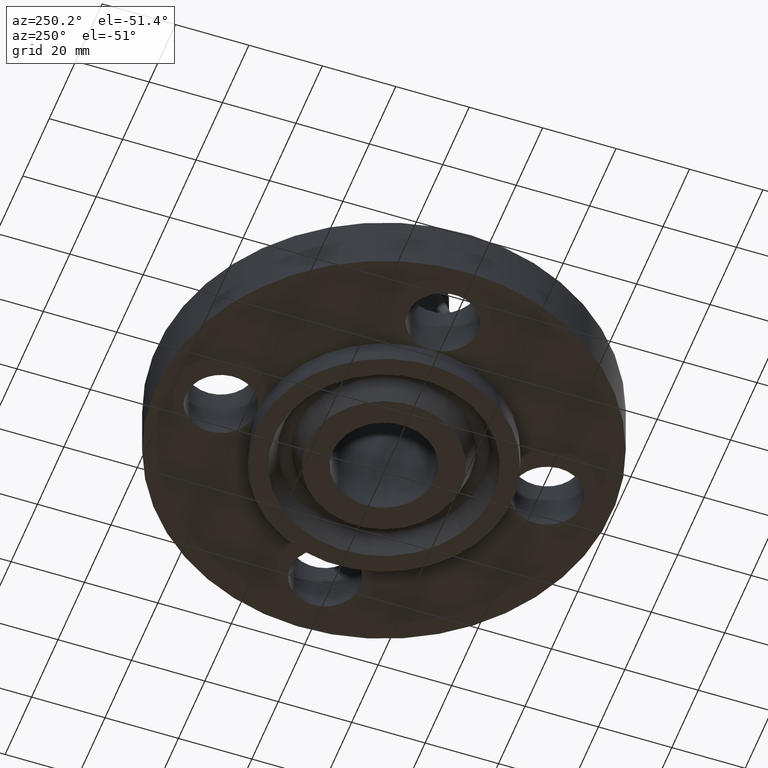
[diagram: clean part render]
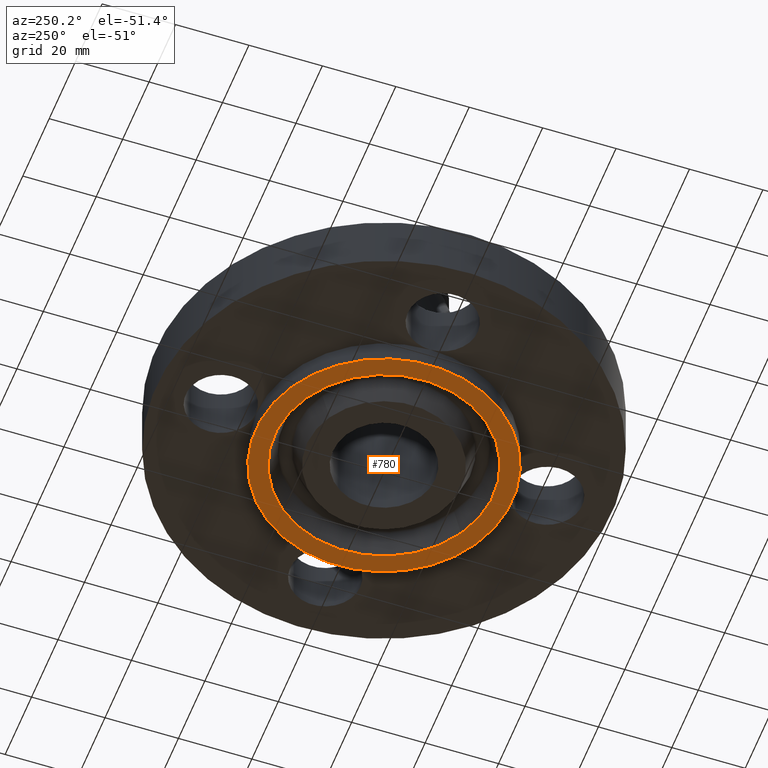
[diagram: same view with one face highlighted and labeled with its STEP entity id]
A machine part, auxiliary view. The second image highlights one B-rep face of the part: STEP entity #780.
In plain terms, the highlighted planar face has unit normal (0, 0, -1).
Its self-contained STEP definition (entity closure, byte-faithful):
#454=AXIS2_PLACEMENT_3D('Circle Axis2P3D',#452,#453,$) ;
#503=AXIS2_PLACEMENT_3D('Circle Axis2P3D',#501,#502,$) ;
#756=AXIS2_PLACEMENT_3D('Plane Axis2P3D',#753,#754,#755) ;
#764=AXIS2_PLACEMENT_3D('Circle Axis2P3D',#762,#763,$) ;
#773=AXIS2_PLACEMENT_3D('Circle Axis2P3D',#771,#772,$) ;
#452=CARTESIAN_POINT('Axis2P3D Location',(0.,0.,-0.250000000001)) ;
#456=CARTESIAN_POINT('Vertex',(-0.659210115583,-1.2066760226,-0.250000000001)) ;
#458=CARTESIAN_POINT('Vertex',(0.659210115583,1.2066760226,-0.250000000001)) ;
#501=CARTESIAN_POINT('Axis2P3D Location',(0.,0.,-0.250000000001)) ;
#753=CARTESIAN_POINT('Axis2P3D Location',(0.,0.548500000002,-0.250000000001)) ;
#762=CARTESIAN_POINT('Axis2P3D Location',(-1.39870617276E-016,-3.49676543189E-016,-0.250000000001)) ;
#766=CARTESIAN_POINT('Vertex',(0.561886731246,-1.02852676254,-0.250000000001)) ;
#768=CARTESIAN_POINT('Vertex',(-0.561886731246,1.02852676254,-0.250000000001)) ;
#771=CARTESIAN_POINT('Axis2P3D Location',(-1.04902962957E-016,-2.09805925913E-016,-0.250000000001)) ;
#453=DIRECTION('Axis2P3D Direction',(0.,0.,-0.0393700787402)) ;
#502=DIRECTION('Axis2P3D Direction',(0.,0.,-0.0393700787402)) ;
#754=DIRECTION('Axis2P3D Direction',(0.,0.,-0.0393700787402)) ;
#755=DIRECTION('Axis2P3D XDirection',(0.0393700787402,0.,0.)) ;
#763=DIRECTION('Axis2P3D Direction',(0.,0.,-0.0393700787402)) ;
#772=DIRECTION('Axis2P3D Direction',(0.,0.,-0.0393700787402)) ;
#759=ORIENTED_EDGE('',*,*,#460,.T.) ;
#760=ORIENTED_EDGE('',*,*,#505,.T.) ;
#777=ORIENTED_EDGE('',*,*,#770,.F.) ;
#778=ORIENTED_EDGE('',*,*,#775,.F.) ;
#779=FACE_BOUND('',#776,.T.) ;
#780=ADVANCED_FACE('PartBody',(#761,#779),#757,.T.) ;
#455=CIRCLE('generated circle',#454,1.37500000001) ;
#504=CIRCLE('generated circle',#503,1.37500000001) ;
#765=CIRCLE('generated circle',#764,1.172) ;
#774=CIRCLE('generated circle',#773,1.172) ;
#460=EDGE_CURVE('',#457,#459,#455,.T.) ;
#505=EDGE_CURVE('',#459,#457,#504,.T.) ;
#770=EDGE_CURVE('',#767,#769,#765,.T.) ;
#775=EDGE_CURVE('',#769,#767,#774,.T.) ;
#758=EDGE_LOOP('',(#759,#760)) ;
#776=EDGE_LOOP('',(#777,#778)) ;
#761=FACE_OUTER_BOUND('',#758,.T.) ;
#757=PLANE('',#756) ;
#457=VERTEX_POINT('',#456) ;
#459=VERTEX_POINT('',#458) ;
#767=VERTEX_POINT('',#766) ;
#769=VERTEX_POINT('',#768) ;